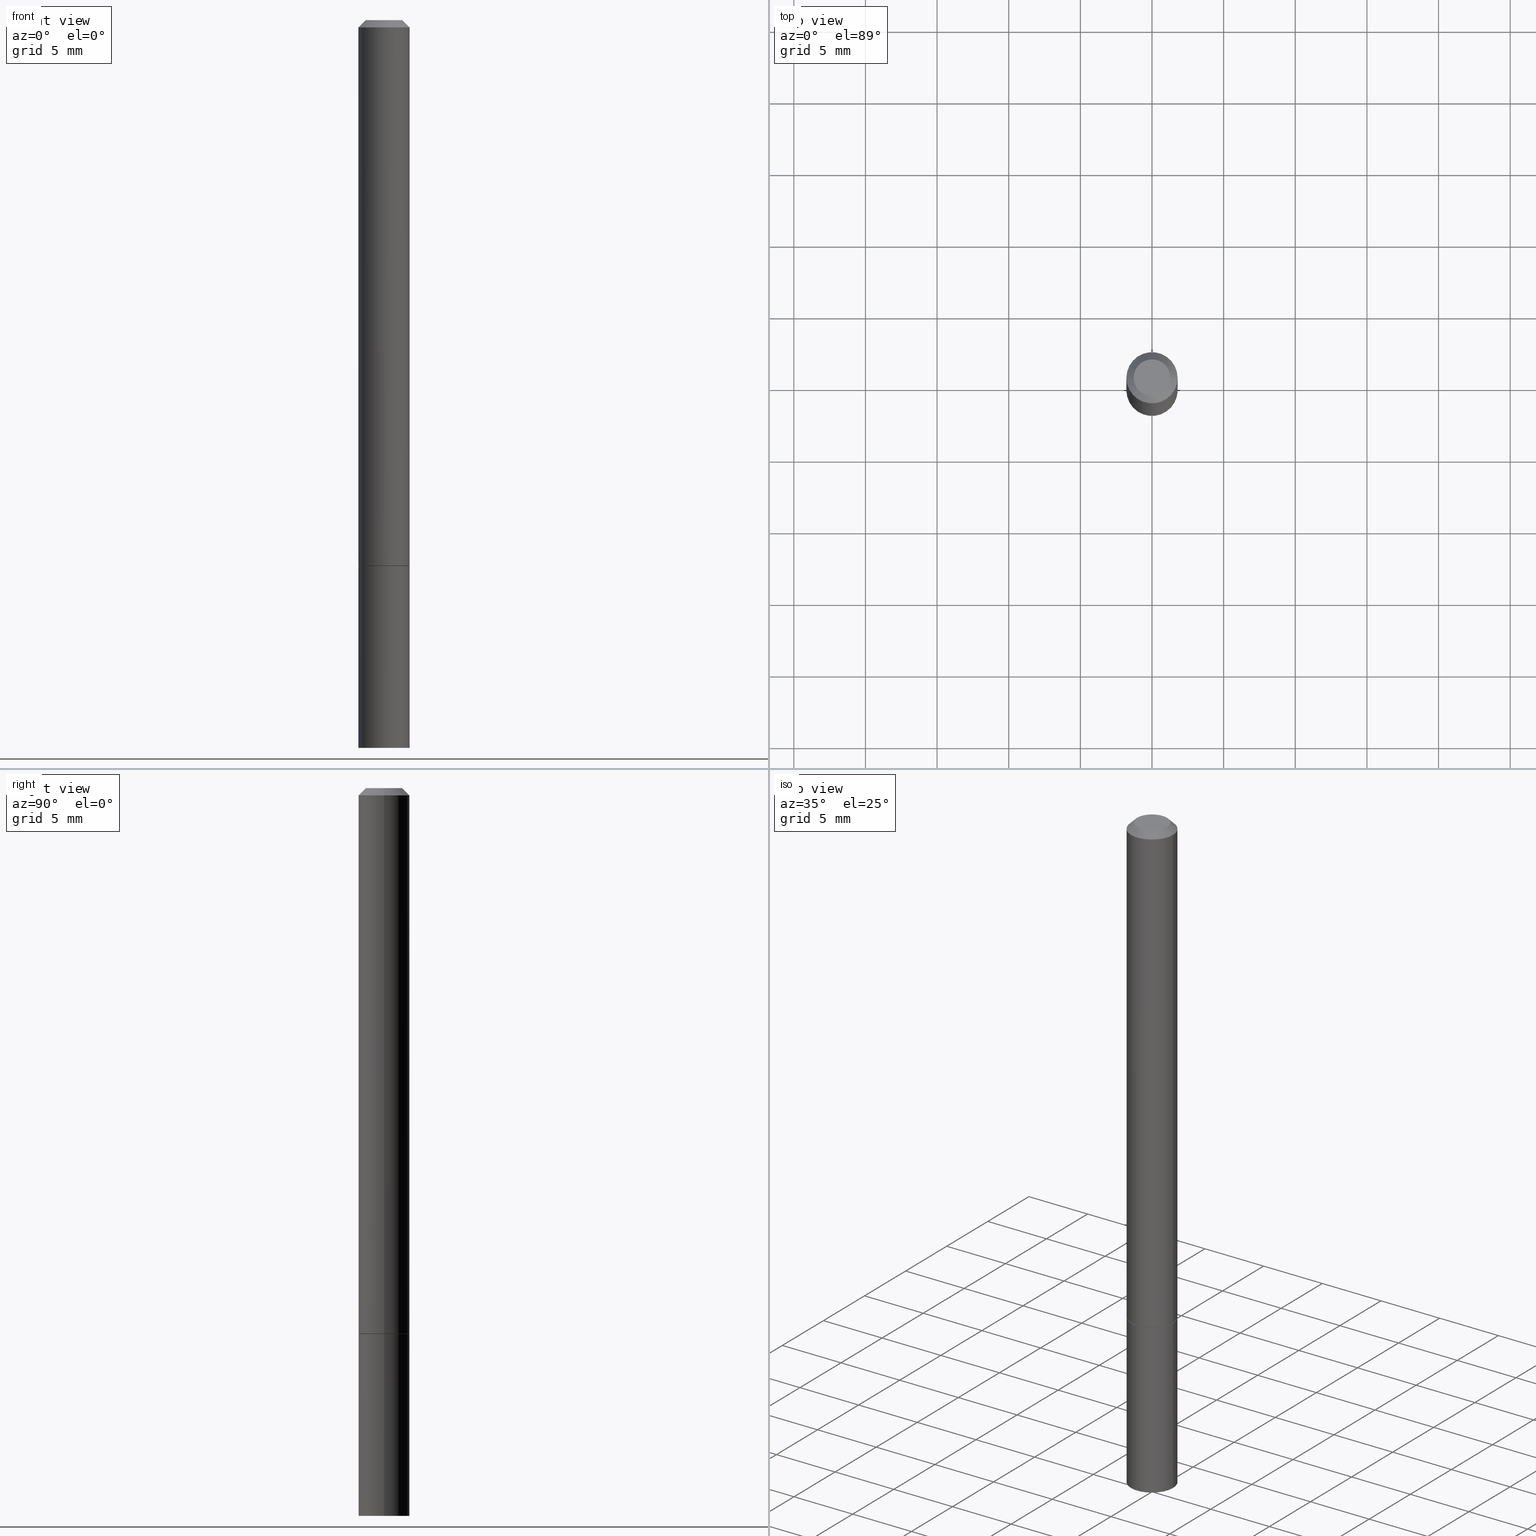
[diagram: canonical four-view strip — front | top / right | iso, engineering-drawing reading convention]
A machine part, canonical four-view strip (front | top / right | iso — engineering-drawing reading convention). The complete STEP part file that produces these views, byte-faithful:
ISO-10303-21;
HEADER;
FILE_DESCRIPTION (( 'STEP AP203' ),
    '1' );
FILE_NAME ('39017.STEP',
    '2023-03-21T20:43:19',
    ( '' ),
    ( '' ),
    'SwSTEP 2.0',
    'SolidWorks 2022',
    '' );
FILE_SCHEMA (( 'CONFIG_CONTROL_DESIGN' ));
ENDSEC;

DATA;
#1 = CALENDAR_DATE ( 2023, 21, 3 ) ;
#2 = PERSON_AND_ORGANIZATION ( #5, #100 ) ;
#3 = ADVANCED_FACE ( 'NONE', ( #73 ), #239, .F. ) ;
#4 = AXIS2_PLACEMENT_3D ( 'NONE', #92, #232, #331 ) ;
#5 = PERSON ( 'UNSPECIFIED', 'UNSPECIFIED', 'UNSPECIFIED', ('UNSPECIFIED'), ('UNSPECIFIED'), ('UNSPECIFIED') ) ;
#6 = PERSON_AND_ORGANIZATION ( #5, #100 ) ;
#7 = APPROVAL_STATUS ( 'not_yet_approved' ) ;
#8 = DIRECTION ( 'NONE',  ( 1.000000000000000000, -6.982962677686266711E-15, 4.876176775795935793E-29 ) ) ;
#9 = APPROVAL ( #207, 'UNSPECIFIED' ) ;
#10 = SECURITY_CLASSIFICATION ( '', '', #30 ) ;
#11 = VERTEX_POINT ( 'NONE', #287 ) ;
#12 = CARTESIAN_POINT ( 'NONE',  ( 4.882074157802437776E-29, -6.969889611284763535E-15, -1.996315733116402757 ) ) ;
#13 = ADVANCED_FACE ( 'NONE', ( #347 ), #14, .F. ) ;
#14 = PLANE ( 'NONE',  #25 ) ;
#15 = DIRECTION ( 'NONE',  ( -2.445468806185136597E-29, 3.491481338843145583E-15, 1.000000000000000000 ) ) ;
#16 = DIRECTION ( 'NONE',  ( 2.438088387897960049E-29, -3.491481338843145188E-15, -1.000000000000000000 ) ) ;
#17 = AXIS2_PLACEMENT_3D ( 'NONE', #19, #250, #220 ) ;
#18 = AXIS2_PLACEMENT_3D ( 'NONE', #296, #51, #58 ) ;
#19 = CARTESIAN_POINT ( 'NONE',  ( 3.668203209277704895E-29, -5.237222008264718177E-15, -1.500000000000000222 ) ) ;
#20 = ORIENTED_EDGE ( 'NONE', *, *, #383, .F. ) ;
#21 = EDGE_LOOP ( 'NONE', ( #353, #294, #231, #20 ) ) ;
#22 = CARTESIAN_POINT ( 'NONE',  ( 0.07029999999999980709, -5.521226360202004844E-16, -0.02000000000000004205 ) ) ;
#23 = ORIENTED_EDGE ( 'NONE', *, *, #184, .T. ) ;
#24 = CARTESIAN_POINT ( 'NONE',  ( 0.07030000000000000138, -4.909022762413445529E-16, 3.427952273384543137E-30 ) ) ;
#25 = AXIS2_PLACEMENT_3D ( 'NONE', #373, #144, #262 ) ;
#26 = CARTESIAN_POINT ( 'NONE',  ( 3.668203209277704895E-29, -5.237222008264718177E-15, -1.500000000000000222 ) ) ;
#27 = APPROVAL_PERSON_ORGANIZATION ( #2, #102, #64 ) ;
#28 = EDGE_LOOP ( 'NONE', ( #190, #86 ) ) ;
#29 = DIRECTION ( 'NONE',  ( -2.445468806185136597E-29, 3.491481338843145583E-15, 1.000000000000000000 ) ) ;
#30 = SECURITY_CLASSIFICATION_LEVEL ( 'unclassified' ) ;
#31 = APPROVAL ( #7, 'UNSPECIFIED' ) ;
#32 = CARTESIAN_POINT ( 'NONE',  ( 0.06930000000000000049, -5.721141321828376321E-15, -1.500000000000000222 ) ) ;
#33 = DIRECTION ( 'NONE',  ( -2.445468806185136597E-29, 3.491481338843145583E-15, 1.000000000000000000 ) ) ;
#34 = AXIS2_PLACEMENT_3D ( 'NONE', #39, #156, #212 ) ;
#35 = LINE ( 'NONE', #214, #61 ) ;
#36 = DATE_AND_TIME ( #281, #131 ) ;
#37 = CALENDAR_DATE ( 2023, 21, 3 ) ;
#38 = AXIS2_PLACEMENT_3D ( 'NONE', #274, #66, #238 ) ;
#39 = CARTESIAN_POINT ( 'NONE',  ( 0.000000000000000000, 0.000000000000000000, 0.000000000000000000 ) ) ;
#40 = ORIENTED_EDGE ( 'NONE', *, *, #311, .T. ) ;
#41 = CARTESIAN_POINT ( 'NONE',  ( 1.011602273087405212E-27, -1.444299943586600005E-13, -41.36639447327388552 ) ) ;
#42 = DIRECTION ( 'NONE',  ( 0.7071067811865232589, -2.468850131082003836E-15, 0.7071067811865715536 ) ) ;
#43 = CARTESIAN_POINT ( 'NONE',  ( 4.909022762413812349E-16, 0.07029999999999476945, -1.500000000000000444 ) ) ;
#44 = CARTESIAN_POINT ( 'NONE',  ( 0.000000000000000000, 0.000000000000000000, 0.000000000000000000 ) ) ;
#45 = ORIENTED_EDGE ( 'NONE', *, *, #88, .F. ) ;
#46 = ORIENTED_EDGE ( 'NONE', *, *, #138, .F. ) ;
#47 = CIRCLE ( 'NONE', #4, 0.07030000000000000138 ) ;
#48 = DIRECTION ( 'NONE',  ( -2.445468806185136597E-29, 3.491481338843145583E-15, 1.000000000000000000 ) ) ;
#49 = EDGE_CURVE ( 'NONE', #260, #379, #193, .T. ) ;
#50 = EDGE_LOOP ( 'NONE', ( #199, #23, #40, #349 ) ) ;
#51 = DIRECTION ( 'NONE',  ( -2.445468806185136597E-29, 3.491481338843145583E-15, 1.000000000000000000 ) ) ;
#52 = DIRECTION ( 'NONE',  ( 0.7071067811865466846, -7.319954787623252890E-15, -0.7071067811865483499 ) ) ;
#53 = ORIENTED_EDGE ( 'NONE', *, *, #82, .F. ) ;
#54 = ADVANCED_FACE ( 'NONE', ( #319 ), #168, .F. ) ;
#55 = CIRCLE ( 'NONE', #18, 0.07030000000000000138 ) ;
#56 = DIRECTION ( 'NONE',  ( -2.445468806185136597E-29, 3.491481338843145583E-15, 1.000000000000000000 ) ) ;
#57 = LINE ( 'NONE', #236, #362 ) ;
#58 = DIRECTION ( 'NONE',  ( 1.000000000000000000, -6.982962677686265133E-15, 0.000000000000000000 ) ) ;
#59 = EDGE_CURVE ( 'NONE', #350, #370, #273, .T. ) ;
#60 = CARTESIAN_POINT ( 'NONE',  ( -0.07030000000000000138, -5.610580799736154033E-15, -1.500000000000000222 ) ) ;
#61 = VECTOR ( 'NONE', #307, 39.37007874015748854 ) ;
#62 = CC_DESIGN_DATE_AND_TIME_ASSIGNMENT ( #157, #277, ( #310 ) ) ;
#63 = DATE_AND_TIME ( #1, #245 ) ;
#64 = APPROVAL_ROLE ( '' ) ;
#65 = CALENDAR_DATE ( 2023, 21, 3 ) ;
#66 = DIRECTION ( 'NONE',  ( -2.445468806185136597E-29, 3.491481338843145583E-15, 1.000000000000000000 ) ) ;
#67 = CC_DESIGN_DATE_AND_TIME_ASSIGNMENT ( #363, #247, ( #10 ) ) ;
#68 = CLOSED_SHELL ( 'NONE', ( #269, #229, #191, #218, #335, #215, #116, #13 ) ) ;
#69 = AXIS2_PLACEMENT_3D ( 'NONE', #380, #228, #203 ) ;
#70 = CARTESIAN_POINT ( 'NONE',  ( 0.05029999999999981708, -4.486028426540536026E-16, 2.796359263189735848E-30 ) ) ;
#71 = CARTESIAN_POINT ( 'NONE',  ( -0.07030000000000000138, 4.995115432393504404E-16, -3.458011368449198869E-30 ) ) ;
#72 = CONICAL_SURFACE ( 'NONE', #119, 0.06930000000000000049, 0.7853981633974141952 ) ;
#73 = FACE_OUTER_BOUND ( 'NONE', #223, .T. ) ;
#74 = CONICAL_SURFACE ( 'NONE', #69, 0.07029999999999980709, 0.7853981633974471688 ) ;
#75 = CARTESIAN_POINT ( 'NONE',  ( 4.890937612370273194E-29, -6.982962677686291165E-15, -2.000000000000000000 ) ) ;
#76 = DIRECTION ( 'NONE',  ( -1.000000000000000000, 6.982962677686265133E-15, 0.000000000000000000 ) ) ;
#77 = ADVANCED_BREP_SHAPE_REPRESENTATION ( '39017', ( #94, #346, #34 ), #160 ) ;
#78 = EDGE_LOOP ( 'NONE', ( #227, #266, #284, #142 ) ) ;
#79 = FACE_OUTER_BOUND ( 'NONE', #135, .T. ) ;
#80 = CARTESIAN_POINT ( 'NONE',  ( 0.000000000000000000, 0.000000000000000000, 0.000000000000000000 ) ) ;
#81 = CARTESIAN_POINT ( 'NONE',  ( 1.011602273087405212E-27, -1.444299943586600005E-13, -41.36639447327388552 ) ) ;
#82 = EDGE_CURVE ( 'NONE', #379, #133, #90, .T. ) ;
#83 = ORIENTED_EDGE ( 'NONE', *, *, #304, .F. ) ;
#84 = VECTOR ( 'NONE', #174, 39.37007874015748143 ) ;
#85 = DIRECTION ( 'NONE',  ( -1.000000000000000000, 6.982962677686267499E-15, 0.000000000000000000 ) ) ;
#86 = ORIENTED_EDGE ( 'NONE', *, *, #59, .T. ) ;
#87 = DIRECTION ( 'NONE',  ( -2.445468806185136597E-29, 3.491481338843145583E-15, 1.000000000000000000 ) ) ;
#88 = EDGE_CURVE ( 'NONE', #11, #141, #253, .T. ) ;
#89 = FACE_OUTER_BOUND ( 'NONE', #50, .T. ) ;
#90 = CIRCLE ( 'NONE', #124, 0.07030000000000000138 ) ;
#91 = UNCERTAINTY_MEASURE_WITH_UNIT (LENGTH_MEASURE( 1.000000000000000082E-05 ), #361, 'distance_accuracy_value', 'NONE');
#92 = CARTESIAN_POINT ( 'NONE',  ( 3.665757740471519853E-29, -5.233730526925875958E-15, -1.499000000000000110 ) ) ;
#93 =( NAMED_UNIT ( * ) PLANE_ANGLE_UNIT ( ) SI_UNIT ( $, .RADIAN. ) );
#94 = MANIFOLD_SOLID_BREP ( 'Body-Move/Copy2[1]', #137 ) ;
#95 = CONICAL_SURFACE ( 'NONE', #139, 0.07029999999999980709, 0.7853981633974471688 ) ;
#96 = COORDINATED_UNIVERSAL_TIME_OFFSET ( 5, 0, .BEHIND. ) ;
#97 = EDGE_CURVE ( 'NONE', #141, #377, #283, .T. ) ;
#98 = APPROVAL_DATE_TIME ( #63, #9 ) ;
#99 = AXIS2_PLACEMENT_3D ( 'NONE', #342, #15, #192 ) ;
#100 = ORGANIZATION ( 'UNSPECIFIED', 'UNSPECIFIED', '' ) ;
#101 = DIRECTION ( 'NONE',  ( -2.445468806185136877E-29, 3.491481338843145188E-15, 1.000000000000000000 ) ) ;
#102 = APPROVAL ( #211, 'UNSPECIFIED' ) ;
#103 = ORIENTED_EDGE ( 'NONE', *, *, #126, .F. ) ;
#104 = PLANE ( 'NONE',  #17 ) ;
#105 = AXIS2_PLACEMENT_3D ( 'NONE', #41, #248, #76 ) ;
#106 = ORIENTED_EDGE ( 'NONE', *, *, #126, .T. ) ;
#107 = CARTESIAN_POINT ( 'NONE',  ( -0.07029999999999980709, 4.210726494644801207E-16, -0.02000000000000004205 ) ) ;
#108 = ORIENTED_EDGE ( 'NONE', *, *, #383, .T. ) ;
#109 = VERTEX_POINT ( 'NONE', #286 ) ;
#110 = FACE_OUTER_BOUND ( 'NONE', #112, .T. ) ;
#111 = VERTEX_POINT ( 'NONE', #12 ) ;
#112 = EDGE_LOOP ( 'NONE', ( #340, #325, #317, #150 ) ) ;
#113 = LOCAL_TIME ( 16, 43, 19.00000000000000000, #128 ) ;
#114 = LINE ( 'NONE', #24, #84 ) ;
#115 = DIRECTION ( 'NONE',  ( 1.000000000000000000, -6.982962677686264344E-15, 0.000000000000000000 ) ) ;
#116 = ADVANCED_FACE ( 'NONE', ( #293 ), #104, .F. ) ;
#117 = LINE ( 'NONE', #234, #330 ) ;
#118 = APPLICATION_CONTEXT ( 'configuration controlled 3d designs of mechanical parts and assemblies' ) ;
#119 = AXIS2_PLACEMENT_3D ( 'NONE', #146, #202, #388 ) ;
#120 = CARTESIAN_POINT ( 'NONE',  ( 4.890937612370283668E-31, -6.982962677686305168E-17, -0.02000000000000004205 ) ) ;
#121 = EDGE_CURVE ( 'NONE', #260, #289, #337, .T. ) ;
#122 = CYLINDRICAL_SURFACE ( 'NONE', #367, 0.07029999999999990423 ) ;
#123 = CARTESIAN_POINT ( 'NONE',  ( -0.07029999999999980709, 4.210726494644801207E-16, -0.02000000000000004205 ) ) ;
#124 = AXIS2_PLACEMENT_3D ( 'NONE', #255, #246, #299 ) ;
#125 = VECTOR ( 'NONE', #101, 39.37007874015748143 ) ;
#126 = EDGE_CURVE ( 'NONE', #141, #11, #155, .T. ) ;
#127 = PERSON_AND_ORGANIZATION ( #5, #100 ) ;
#128 = COORDINATED_UNIVERSAL_TIME_OFFSET ( 5, 0, .BEHIND. ) ;
#129 = FACE_OUTER_BOUND ( 'NONE', #21, .T. ) ;
#130 = LINE ( 'NONE', #378, #125 ) ;
#131 = LOCAL_TIME ( 16, 43, 19.00000000000000000, #365 ) ;
#132 = EDGE_CURVE ( 'NONE', #289, #133, #323, .T. ) ;
#133 = VERTEX_POINT ( 'NONE', #166 ) ;
#134 = APPROVAL_ROLE ( '' ) ;
#135 = EDGE_LOOP ( 'NONE', ( #173, #106, #355, #46 ) ) ;
#136 = DIRECTION ( 'NONE',  ( -2.445468806185136597E-29, 3.491481338843145583E-15, 1.000000000000000000 ) ) ;
#137 = CLOSED_SHELL ( 'NONE', ( #188, #3, #167, #154, #54 ) ) ;
#138 = EDGE_CURVE ( 'NONE', #377, #109, #244, .T. ) ;
#139 = AXIS2_PLACEMENT_3D ( 'NONE', #143, #178, #85 ) ;
#140 = DIRECTION ( 'NONE',  ( -2.445468806185136597E-29, 3.491481338843145583E-15, 1.000000000000000000 ) ) ;
#141 = VERTEX_POINT ( 'NONE', #348 ) ;
#142 = ORIENTED_EDGE ( 'NONE', *, *, #158, .F. ) ;
#143 = CARTESIAN_POINT ( 'NONE',  ( 4.890937612370283668E-31, -6.982962677686305168E-17, -0.02000000000000004205 ) ) ;
#144 = DIRECTION ( 'NONE',  ( 2.438088387897960049E-29, -3.491481338843145188E-15, -1.000000000000000000 ) ) ;
#145 = ORIENTED_EDGE ( 'NONE', *, *, #179, .T. ) ;
#146 = CARTESIAN_POINT ( 'NONE',  ( 3.668203209277704895E-29, -5.237222008264718177E-15, -1.500000000000000222 ) ) ;
#147 = AXIS2_PLACEMENT_3D ( 'NONE', #382, #56, #357 ) ;
#148 = DIRECTION ( 'NONE',  ( -2.445468806185136597E-29, 3.491481338843145583E-15, 1.000000000000000000 ) ) ;
#149 = EDGE_CURVE ( 'NONE', #370, #345, #376, .T. ) ;
#150 = ORIENTED_EDGE ( 'NONE', *, *, #259, .F. ) ;
#151 = CARTESIAN_POINT ( 'NONE',  ( -0.06930000000000000049, -4.739517438034746934E-15, -1.500000000000000222 ) ) ;
#152 = PERSON_AND_ORGANIZATION ( #5, #100 ) ;
#153 = FACE_OUTER_BOUND ( 'NONE', #177, .T. ) ;
#154 = ADVANCED_FACE ( 'NONE', ( #79 ), #195, .T. ) ;
#155 = CIRCLE ( 'NONE', #366, 0.07030000000000000138 ) ;
#156 = DIRECTION ( 'NONE',  ( 0.000000000000000000, 0.000000000000000000, 1.000000000000000000 ) ) ;
#157 = DATE_AND_TIME ( #37, #334 ) ;
#158 = EDGE_CURVE ( 'NONE', #133, #226, #130, .T. ) ;
#159 =( LENGTH_UNIT ( ) NAMED_UNIT ( * ) SI_UNIT ( $, .METRE. ) );
#160 =( GEOMETRIC_REPRESENTATION_CONTEXT ( 3 ) GLOBAL_UNCERTAINTY_ASSIGNED_CONTEXT ( ( #91 ) ) GLOBAL_UNIT_ASSIGNED_CONTEXT ( ( #361, #93, #306 ) ) REPRESENTATION_CONTEXT ( 'NONE', 'WORKASPACE' ) );
#161 = APPLICATION_PROTOCOL_DEFINITION ( 'international standard', 'config_control_design', 1994, #343 ) ;
#162 = CC_DESIGN_PERSON_AND_ORGANIZATION_ASSIGNMENT ( #152, #208, ( #10 ) ) ;
#163 = CC_DESIGN_APPROVAL ( #31, ( #10 ) ) ;
#164 = ORIENTED_EDGE ( 'NONE', *, *, #132, .F. ) ;
#165 = ORIENTED_EDGE ( 'NONE', *, *, #138, .T. ) ;
#166 = CARTESIAN_POINT ( 'NONE',  ( 0.07030000000000000138, -5.724632803167220117E-15, -1.499000000000000110 ) ) ;
#167 = ADVANCED_FACE ( 'NONE', ( #225 ), #298, .F. ) ;
#168 = PLANE ( 'NONE',  #328 ) ;
#169 = ORIENTED_EDGE ( 'NONE', *, *, #149, .T. ) ;
#170 = DIMENSIONAL_EXPONENTS ( 1.000000000000000000, 0.000000000000000000, 0.000000000000000000, 0.000000000000000000, 0.000000000000000000, 0.000000000000000000, 0.000000000000000000 ) ;
#171 = VECTOR ( 'NONE', #257, 39.37007874015748143 ) ;
#172 = DIRECTION ( 'NONE',  ( -1.000000000000000000, 6.982962677686265922E-15, -4.876176775795935793E-29 ) ) ;
#173 = ORIENTED_EDGE ( 'NONE', *, *, #97, .F. ) ;
#174 = DIRECTION ( 'NONE',  ( -2.445468806185136877E-29, 3.491481338843145188E-15, 1.000000000000000000 ) ) ;
#175 = DIRECTION ( 'NONE',  ( -2.445468806185136877E-29, 3.491481338843145188E-15, 1.000000000000000000 ) ) ;
#176 = CIRCLE ( 'NONE', #338, 0.07029999999999980709 ) ;
#177 = EDGE_LOOP ( 'NONE', ( #258, #385, #169, #108 ) ) ;
#178 = DIRECTION ( 'NONE',  ( 2.445468806185136597E-29, -3.491481338843145583E-15, -1.000000000000000000 ) ) ;
#179 = EDGE_CURVE ( 'NONE', #109, #377, #55, .T. ) ;
#180 = CARTESIAN_POINT ( 'NONE',  ( 0.000000000000000000, 0.000000000000000000, 0.000000000000000000 ) ) ;
#181 = AXIS2_PLACEMENT_3D ( 'NONE', #327, #87, #351 ) ;
#182 = PERSON_AND_ORGANIZATION ( #5, #100 ) ;
#183 = DIRECTION ( 'NONE',  ( -2.445468806185136597E-29, 3.491481338843145583E-15, 1.000000000000000000 ) ) ;
#184 = EDGE_CURVE ( 'NONE', #350, #226, #271, .T. ) ;
#185 = CARTESIAN_POINT ( 'NONE',  ( 0.000000000000000000, 0.000000000000000000, 0.000000000000000000 ) ) ;
#186 = VECTOR ( 'NONE', #371, 39.37007874015748143 ) ;
#187 = AXIS2_PLACEMENT_3D ( 'NONE', #81, #197, #217 ) ;
#188 = ADVANCED_FACE ( 'NONE', ( #110 ), #264, .T. ) ;
#189 = PRODUCT_DEFINITION_FORMATION_WITH_SPECIFIED_SOURCE ( 'ANY', '', #354, .NOT_KNOWN. ) ;
#190 = ORIENTED_EDGE ( 'NONE', *, *, #251, .T. ) ;
#191 = ADVANCED_FACE ( 'NONE', ( #89 ), #95, .T. ) ;
#192 = DIRECTION ( 'NONE',  ( 1.000000000000000000, -6.982962677686264344E-15, 0.000000000000000000 ) ) ;
#193 = LINE ( 'NONE', #291, #297 ) ;
#194 = EDGE_LOOP ( 'NONE', ( #326, #200, #221, #164 ) ) ;
#195 = CYLINDRICAL_SURFACE ( 'NONE', #313, 0.07030000000000000138 ) ;
#196 = DIRECTION ( 'NONE',  ( -0.7071067811865232589, 7.493145998870265808E-15, 0.7071067811865715536 ) ) ;
#197 = DIRECTION ( 'NONE',  ( 2.445468806185136597E-29, -3.491481338843145583E-15, -1.000000000000000000 ) ) ;
#198 = VECTOR ( 'NONE', #42, 39.37007874015748854 ) ;
#199 = ORIENTED_EDGE ( 'NONE', *, *, #59, .F. ) ;
#200 = ORIENTED_EDGE ( 'NONE', *, *, #49, .T. ) ;
#201 = CC_DESIGN_PERSON_AND_ORGANIZATION_ASSIGNMENT ( #268, #387, ( #189 ) ) ;
#202 = DIRECTION ( 'NONE',  ( -2.445468806185136597E-29, 3.491481338843145583E-15, 1.000000000000000000 ) ) ;
#203 = DIRECTION ( 'NONE',  ( -1.000000000000000000, 6.982962677686267499E-15, 0.000000000000000000 ) ) ;
#204 = APPROVAL_DATE_TIME ( #36, #102 ) ;
#205 = AXIS2_PLACEMENT_3D ( 'NONE', #288, #136, #254 ) ;
#206 = CYLINDRICAL_SURFACE ( 'NONE', #181, 0.07029999999999990423 ) ;
#207 = APPROVAL_STATUS ( 'not_yet_approved' ) ;
#208 = PERSON_AND_ORGANIZATION_ROLE ( 'classification_officer' ) ;
#209 = AXIS2_PLACEMENT_3D ( 'NONE', #26, #148, #267 ) ;
#210 = PERSON_AND_ORGANIZATION_ROLE ( 'design_owner' ) ;
#211 = APPROVAL_STATUS ( 'not_yet_approved' ) ;
#212 = DIRECTION ( 'NONE',  ( 1.000000000000000000, 0.000000000000000000, 0.000000000000000000 ) ) ;
#213 = SHAPE_DEFINITION_REPRESENTATION ( #249, #77 ) ;
#214 = CARTESIAN_POINT ( 'NONE',  ( -2.095173300814072201E-19, -6.970099128614893921E-15, -1.996315733116402757 ) ) ;
#215 = ADVANCED_FACE ( 'NONE', ( #356 ), #235, .T. ) ;
#216 = DATE_AND_TIME ( #65, #113 ) ;
#217 = DIRECTION ( 'NONE',  ( -1.000000000000000000, 6.982962677686265133E-15, 0.000000000000000000 ) ) ;
#218 = ADVANCED_FACE ( 'NONE', ( #153 ), #74, .T. ) ;
#219 = ORIENTED_EDGE ( 'NONE', *, *, #372, .F. ) ;
#220 = DIRECTION ( 'NONE',  ( 1.000000000000000000, -6.982962677686265922E-15, 4.876176775795935793E-29 ) ) ;
#221 = ORIENTED_EDGE ( 'NONE', *, *, #321, .F. ) ;
#222 = CARTESIAN_POINT ( 'NONE',  ( 0.06930000000000000049, -5.721141321828376321E-15, -1.500000000000000222 ) ) ;
#223 = EDGE_LOOP ( 'NONE', ( #219, #314, #103 ) ) ;
#224 = ORIENTED_EDGE ( 'NONE', *, *, #132, .T. ) ;
#225 = FACE_OUTER_BOUND ( 'NONE', #381, .T. ) ;
#226 = VERTEX_POINT ( 'NONE', #303 ) ;
#227 = ORIENTED_EDGE ( 'NONE', *, *, #321, .T. ) ;
#228 = DIRECTION ( 'NONE',  ( 2.445468806185136597E-29, -3.491481338843145583E-15, -1.000000000000000000 ) ) ;
#229 = ADVANCED_FACE ( 'NONE', ( #389 ), #206, .T. ) ;
#230 = LOCAL_TIME ( 16, 43, 19.00000000000000000, #276 ) ;
#231 = ORIENTED_EDGE ( 'NONE', *, *, #158, .T. ) ;
#232 = DIRECTION ( 'NONE',  ( -2.445468806185136597E-29, 3.491481338843145583E-15, 1.000000000000000000 ) ) ;
#233 = CC_DESIGN_PERSON_AND_ORGANIZATION_ASSIGNMENT ( #329, #302, ( #189 ) ) ;
#234 = CARTESIAN_POINT ( 'NONE',  ( -0.07029999999999990423, 4.995115432393497502E-16, -3.458011368449193965E-30 ) ) ;
#235 = CONICAL_SURFACE ( 'NONE', #341, 0.06930000000000000049, 0.7853981633974141952 ) ;
#236 = CARTESIAN_POINT ( 'NONE',  ( 2.095173301790458016E-19, -6.970099128614893921E-15, -1.996315733116402757 ) ) ;
#237 = LENGTH_MEASURE_WITH_UNIT ( LENGTH_MEASURE( 0.02539999999999999897 ), #159 );
#238 = DIRECTION ( 'NONE',  ( 1.000000000000000000, -6.982962677686267499E-15, 0.000000000000000000 ) ) ;
#239 = CONICAL_SURFACE ( 'NONE', #105, 751.2258538476867216, 1.518436449235075036 ) ;
#240 = CALENDAR_DATE ( 2023, 21, 3 ) ;
#241 = PERSON_AND_ORGANIZATION_ROLE ( 'creator' ) ;
#242 = COORDINATED_UNIVERSAL_TIME_OFFSET ( 5, 0, .BEHIND. ) ;
#243 = APPROVAL_DATE_TIME ( #216, #31 ) ;
#244 = CIRCLE ( 'NONE', #205, 0.07030000000000000138 ) ;
#245 = LOCAL_TIME ( 16, 43, 19.00000000000000000, #96 ) ;
#246 = DIRECTION ( 'NONE',  ( -2.445468806185136597E-29, 3.491481338843145583E-15, 1.000000000000000000 ) ) ;
#247 = DATE_TIME_ROLE ( 'classification_date' ) ;
#248 = DIRECTION ( 'NONE',  ( 2.445468806185136597E-29, -3.491481338843145583E-15, -1.000000000000000000 ) ) ;
#249 = PRODUCT_DEFINITION_SHAPE ( 'NONE', 'NONE',  #310 ) ;
#250 = DIRECTION ( 'NONE',  ( -2.438088387897960049E-29, 3.491481338843145188E-15, 1.000000000000000000 ) ) ;
#251 = EDGE_CURVE ( 'NONE', #370, #350, #390, .T. ) ;
#252 = ORIENTED_EDGE ( 'NONE', *, *, #121, .F. ) ;
#253 = CIRCLE ( 'NONE', #312, 0.07030000000000000138 ) ;
#254 = DIRECTION ( 'NONE',  ( 1.000000000000000000, -6.982962677686265133E-15, 0.000000000000000000 ) ) ;
#255 = CARTESIAN_POINT ( 'NONE',  ( 3.665757740471519853E-29, -5.233730526925875958E-15, -1.499000000000000110 ) ) ;
#256 = EDGE_LOOP ( 'NONE', ( #145, #165 ) ) ;
#257 = DIRECTION ( 'NONE',  ( -0.7071067811865466846, 2.468850131082247989E-15, -0.7071067811865483499 ) ) ;
#258 = ORIENTED_EDGE ( 'NONE', *, *, #184, .F. ) ;
#259 = EDGE_CURVE ( 'NONE', #11, #109, #114, .T. ) ;
#260 = VERTEX_POINT ( 'NONE', #151 ) ;
#261 = CARTESIAN_POINT ( 'NONE',  ( 3.668203209277704895E-29, -5.237222008264718177E-15, -1.500000000000000222 ) ) ;
#262 = DIRECTION ( 'NONE',  ( -1.000000000000000000, 6.982962677686265922E-15, -4.876176775795935793E-29 ) ) ;
#263 = ORIENTED_EDGE ( 'NONE', *, *, #49, .F. ) ;
#264 = CYLINDRICAL_SURFACE ( 'NONE', #375, 0.07030000000000000138 ) ;
#265 = CC_DESIGN_SECURITY_CLASSIFICATION ( #10, ( #189 ) ) ;
#266 = ORIENTED_EDGE ( 'NONE', *, *, #285, .T. ) ;
#267 = DIRECTION ( 'NONE',  ( 1.000000000000000000, -6.982962677686264344E-15, 0.000000000000000000 ) ) ;
#268 = PERSON_AND_ORGANIZATION ( #5, #100 ) ;
#269 = ADVANCED_FACE ( 'NONE', ( #272 ), #72, .T. ) ;
#270 = CARTESIAN_POINT ( 'NONE',  ( 4.890937612370273194E-29, -6.982962677686291165E-15, -2.000000000000000000 ) ) ;
#271 = LINE ( 'NONE', #22, #316 ) ;
#272 = FACE_OUTER_BOUND ( 'NONE', #194, .T. ) ;
#273 = CIRCLE ( 'NONE', #374, 0.05029999999999981708 ) ;
#274 = CARTESIAN_POINT ( 'NONE',  ( 4.890937612370283668E-31, -6.982962677686305168E-17, -0.02000000000000004205 ) ) ;
#275 = APPROVAL_ROLE ( '' ) ;
#276 = COORDINATED_UNIVERSAL_TIME_OFFSET ( 5, 0, .BEHIND. ) ;
#277 = DATE_TIME_ROLE ( 'creation_date' ) ;
#278 = CIRCLE ( 'NONE', #38, 0.07029999999999980709 ) ;
#279 = APPLICATION_PROTOCOL_DEFINITION ( 'international standard', 'config_control_design', 1994, #118 ) ;
#280 = PERSON_AND_ORGANIZATION ( #5, #100 ) ;
#281 = CALENDAR_DATE ( 2023, 21, 3 ) ;
#282 = APPROVAL_PERSON_ORGANIZATION ( #280, #31, #134 ) ;
#283 = LINE ( 'NONE', #71, #186 ) ;
#284 = ORIENTED_EDGE ( 'NONE', *, *, #311, .F. ) ;
#285 = EDGE_CURVE ( 'NONE', #379, #345, #117, .T. ) ;
#286 = CARTESIAN_POINT ( 'NONE',  ( 0.07030000000000000138, -5.728124284506063124E-15, -1.500000000000000222 ) ) ;
#287 = CARTESIAN_POINT ( 'NONE',  ( 0.07030000000000004301, -7.465255686929629633E-15, -2.000000000000000000 ) ) ;
#288 = CARTESIAN_POINT ( 'NONE',  ( 3.668203209277704895E-29, -5.237222008264718177E-15, -1.500000000000000222 ) ) ;
#289 = VERTEX_POINT ( 'NONE', #32 ) ;
#290 = DIRECTION ( 'NONE',  ( 1.000000000000000000, -6.982962677686266711E-15, 4.876176775795936353E-29 ) ) ;
#291 = CARTESIAN_POINT ( 'NONE',  ( -0.06930000000000000049, -4.744815892382969336E-15, -1.500000000000000222 ) ) ;
#292 = ORIENTED_EDGE ( 'NONE', *, *, #121, .T. ) ;
#293 = FACE_OUTER_BOUND ( 'NONE', #295, .T. ) ;
#294 = ORIENTED_EDGE ( 'NONE', *, *, #82, .T. ) ;
#295 = EDGE_LOOP ( 'NONE', ( #83, #252 ) ) ;
#296 = CARTESIAN_POINT ( 'NONE',  ( 3.668203209277704895E-29, -5.237222008264718177E-15, -1.500000000000000222 ) ) ;
#297 = VECTOR ( 'NONE', #196, 39.37007874015748854 ) ;
#298 = CONICAL_SURFACE ( 'NONE', #187, 751.2258538476867216, 1.518436449235075036 ) ;
#299 = DIRECTION ( 'NONE',  ( 1.000000000000000000, -6.982962677686265133E-15, 0.000000000000000000 ) ) ;
#300 = ORIENTED_EDGE ( 'NONE', *, *, #372, .T. ) ;
#301 = DIRECTION ( 'NONE',  ( -2.445468806185136597E-29, 3.491481338843145583E-15, 1.000000000000000000 ) ) ;
#302 = PERSON_AND_ORGANIZATION_ROLE ( 'design_supplier' ) ;
#303 = CARTESIAN_POINT ( 'NONE',  ( 0.07029999999999980709, -5.521226360202004844E-16, -0.02000000000000004205 ) ) ;
#304 = EDGE_CURVE ( 'NONE', #289, #260, #324, .T. ) ;
#305 = CC_DESIGN_APPROVAL ( #9, ( #310 ) ) ;
#306 =( NAMED_UNIT ( * ) SI_UNIT ( $, .STERADIAN. ) SOLID_ANGLE_UNIT ( ) );
#307 = DIRECTION ( 'NONE',  ( -0.9986295347545742773, 6.790662755453672411E-15, -0.05233595624293554960 ) ) ;
#308 = DIRECTION ( 'NONE',  ( 1.000000000000000000, -6.982962677686265133E-15, 0.000000000000000000 ) ) ;
#309 = DESIGN_CONTEXT ( 'detailed design', #118, 'design' ) ;
#310 = PRODUCT_DEFINITION ( 'UNKNOWN', '', #189, #309 ) ;
#311 = EDGE_CURVE ( 'NONE', #226, #345, #176, .T. ) ;
#312 = AXIS2_PLACEMENT_3D ( 'NONE', #270, #183, #308 ) ;
#313 = AXIS2_PLACEMENT_3D ( 'NONE', #44, #369, #290 ) ;
#314 = ORIENTED_EDGE ( 'NONE', *, *, #333, .T. ) ;
#315 = PRODUCT_RELATED_PRODUCT_CATEGORY ( 'detail', '', ( #354 ) ) ;
#316 = VECTOR ( 'NONE', #52, 39.37007874015748143 ) ;
#317 = ORIENTED_EDGE ( 'NONE', *, *, #179, .F. ) ;
#318 = DIRECTION ( 'NONE',  ( 1.000000000000000000, -6.982962677686265133E-15, 0.000000000000000000 ) ) ;
#319 = FACE_OUTER_BOUND ( 'NONE', #256, .T. ) ;
#320 = EDGE_LOOP ( 'NONE', ( #263, #292, #224, #53 ) ) ;
#321 = EDGE_CURVE ( 'NONE', #133, #379, #47, .T. ) ;
#322 = DIRECTION ( 'NONE',  ( 1.000000000000000000, -6.982962677686266711E-15, 4.876176775795936353E-29 ) ) ;
#323 = LINE ( 'NONE', #222, #198 ) ;
#324 = CIRCLE ( 'NONE', #209, 0.06930000000000000049 ) ;
#325 = ORIENTED_EDGE ( 'NONE', *, *, #97, .T. ) ;
#326 = ORIENTED_EDGE ( 'NONE', *, *, #304, .T. ) ;
#327 = CARTESIAN_POINT ( 'NONE',  ( 0.000000000000000000, 0.000000000000000000, 0.000000000000000000 ) ) ;
#328 = AXIS2_PLACEMENT_3D ( 'NONE', #43, #16, #172 ) ;
#329 = PERSON_AND_ORGANIZATION ( #5, #100 ) ;
#330 = VECTOR ( 'NONE', #175, 39.37007874015748143 ) ;
#331 = DIRECTION ( 'NONE',  ( 1.000000000000000000, -6.982962677686265133E-15, 0.000000000000000000 ) ) ;
#332 = DIRECTION ( 'NONE',  ( 1.000000000000000000, -6.982962677686266711E-15, 4.876176775795936353E-29 ) ) ;
#333 = EDGE_CURVE ( 'NONE', #111, #11, #57, .T. ) ;
#334 = LOCAL_TIME ( 16, 43, 19.00000000000000000, #242 ) ;
#335 = ADVANCED_FACE ( 'NONE', ( #129 ), #122, .T. ) ;
#336 = CARTESIAN_POINT ( 'NONE',  ( -0.07030000000000000138, -2.152268533612015835E-15, -1.499000000000000110 ) ) ;
#337 = CIRCLE ( 'NONE', #99, 0.06930000000000000049 ) ;
#338 = AXIS2_PLACEMENT_3D ( 'NONE', #120, #358, #386 ) ;
#339 = CARTESIAN_POINT ( 'NONE',  ( -0.05029999999999981708, 3.861578360760490633E-16, -2.578333688018695256E-30 ) ) ;
#340 = ORIENTED_EDGE ( 'NONE', *, *, #88, .T. ) ;
#341 = AXIS2_PLACEMENT_3D ( 'NONE', #261, #301, #115 ) ;
#342 = CARTESIAN_POINT ( 'NONE',  ( 3.668203209277704895E-29, -5.237222008264718177E-15, -1.500000000000000222 ) ) ;
#343 = APPLICATION_CONTEXT ( 'configuration controlled 3d designs of mechanical parts and assemblies' ) ;
#344 = ORIENTED_EDGE ( 'NONE', *, *, #333, .F. ) ;
#345 = VERTEX_POINT ( 'NONE', #123 ) ;
#346 = MANIFOLD_SOLID_BREP ( 'Body-Move/Copy2[2]', #68 ) ;
#347 = FACE_OUTER_BOUND ( 'NONE', #28, .T. ) ;
#348 = CARTESIAN_POINT ( 'NONE',  ( -0.07030000000000004301, -6.492060401444947007E-15, -2.000000000000000000 ) ) ;
#349 = ORIENTED_EDGE ( 'NONE', *, *, #149, .F. ) ;
#350 = VERTEX_POINT ( 'NONE', #70 ) ;
#351 = DIRECTION ( 'NONE',  ( 1.000000000000000000, -6.982962677686266711E-15, 4.876176775795935793E-29 ) ) ;
#352 = CC_DESIGN_APPROVAL ( #102, ( #189 ) ) ;
#353 = ORIENTED_EDGE ( 'NONE', *, *, #285, .F. ) ;
#354 = PRODUCT ( '39017', '39017', '', ( #364 ) ) ;
#355 = ORIENTED_EDGE ( 'NONE', *, *, #259, .T. ) ;
#356 = FACE_OUTER_BOUND ( 'NONE', #320, .T. ) ;
#357 = DIRECTION ( 'NONE',  ( 1.000000000000000000, -6.982962677686266711E-15, 4.876176775795936353E-29 ) ) ;
#358 = DIRECTION ( 'NONE',  ( -2.445468806185136597E-29, 3.491481338843145583E-15, 1.000000000000000000 ) ) ;
#359 = CC_DESIGN_PERSON_AND_ORGANIZATION_ASSIGNMENT ( #182, #241, ( #310 ) ) ;
#360 = DIRECTION ( 'NONE',  ( 0.9986295347545742773, -7.033825938271993967E-15, -0.05233595624293554960 ) ) ;
#361 =( CONVERSION_BASED_UNIT ( 'INCH', #237 ) LENGTH_UNIT ( ) NAMED_UNIT ( #170 ) );
#362 = VECTOR ( 'NONE', #360, 39.37007874015748854 ) ;
#363 = DATE_AND_TIME ( #240, #230 ) ;
#364 = MECHANICAL_CONTEXT ( 'NONE', #343, 'mechanical' ) ;
#365 = COORDINATED_UNIVERSAL_TIME_OFFSET ( 5, 0, .BEHIND. ) ;
#366 = AXIS2_PLACEMENT_3D ( 'NONE', #75, #48, #318 ) ;
#367 = AXIS2_PLACEMENT_3D ( 'NONE', #185, #33, #8 ) ;
#368 = CC_DESIGN_PERSON_AND_ORGANIZATION_ASSIGNMENT ( #127, #210, ( #354 ) ) ;
#369 = DIRECTION ( 'NONE',  ( -2.445468806185136597E-29, 3.491481338843145583E-15, 1.000000000000000000 ) ) ;
#370 = VERTEX_POINT ( 'NONE', #339 ) ;
#371 = DIRECTION ( 'NONE',  ( -2.445468806185136877E-29, 3.491481338843145188E-15, 1.000000000000000000 ) ) ;
#372 = EDGE_CURVE ( 'NONE', #111, #141, #35, .T. ) ;
#373 = CARTESIAN_POINT ( 'NONE',  ( 3.512430226876179072E-16, 0.05029999999999981708, -1.756215113438095946E-16 ) ) ;
#374 = AXIS2_PLACEMENT_3D ( 'NONE', #80, #140, #322 ) ;
#375 = AXIS2_PLACEMENT_3D ( 'NONE', #180, #29, #332 ) ;
#376 = LINE ( 'NONE', #107, #171 ) ;
#377 = VERTEX_POINT ( 'NONE', #60 ) ;
#378 = CARTESIAN_POINT ( 'NONE',  ( 0.07029999999999990423, -4.909022762413438627E-16, 3.427952273384538232E-30 ) ) ;
#379 = VERTEX_POINT ( 'NONE', #336 ) ;
#380 = CARTESIAN_POINT ( 'NONE',  ( 4.890937612370283668E-31, -6.982962677686305168E-17, -0.02000000000000004205 ) ) ;
#381 = EDGE_LOOP ( 'NONE', ( #344, #300, #45 ) ) ;
#382 = CARTESIAN_POINT ( 'NONE',  ( 0.000000000000000000, 0.000000000000000000, 0.000000000000000000 ) ) ;
#383 = EDGE_CURVE ( 'NONE', #345, #226, #278, .T. ) ;
#384 = APPROVAL_PERSON_ORGANIZATION ( #6, #9, #275 ) ;
#385 = ORIENTED_EDGE ( 'NONE', *, *, #251, .F. ) ;
#386 = DIRECTION ( 'NONE',  ( 1.000000000000000000, -6.982962677686267499E-15, 0.000000000000000000 ) ) ;
#387 = PERSON_AND_ORGANIZATION_ROLE ( 'creator' ) ;
#388 = DIRECTION ( 'NONE',  ( 1.000000000000000000, -6.982962677686264344E-15, 0.000000000000000000 ) ) ;
#389 = FACE_OUTER_BOUND ( 'NONE', #78, .T. ) ;
#390 = CIRCLE ( 'NONE', #147, 0.05029999999999981708 ) ;
ENDSEC;
END-ISO-10303-21;
